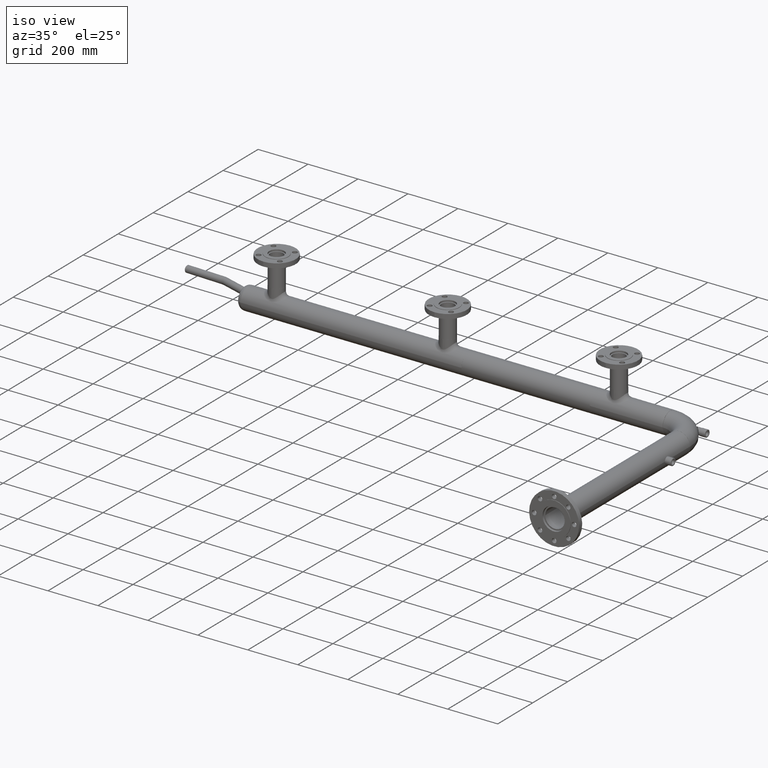
[diagram: clean part render]
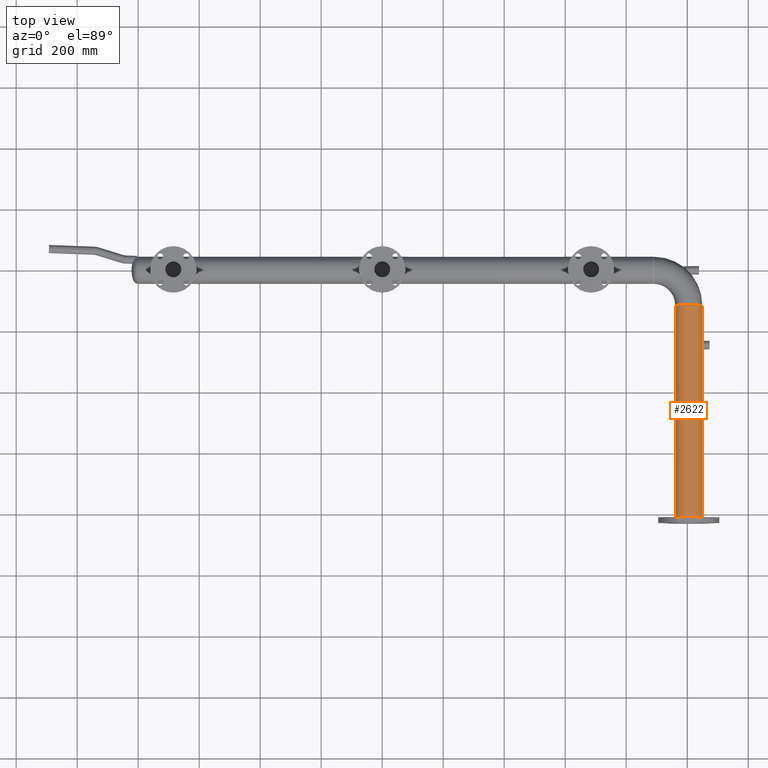
[diagram: tour spotlight — one face highlighted and labeled with its STEP entity id]
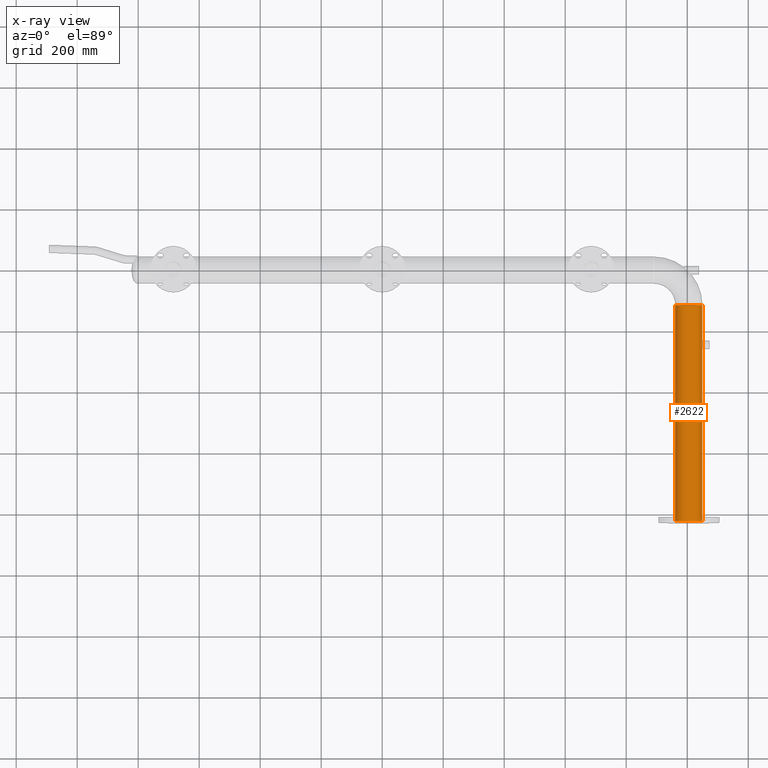
[diagram: x-ray of the same camera — body ghosted, this tour face saturated]
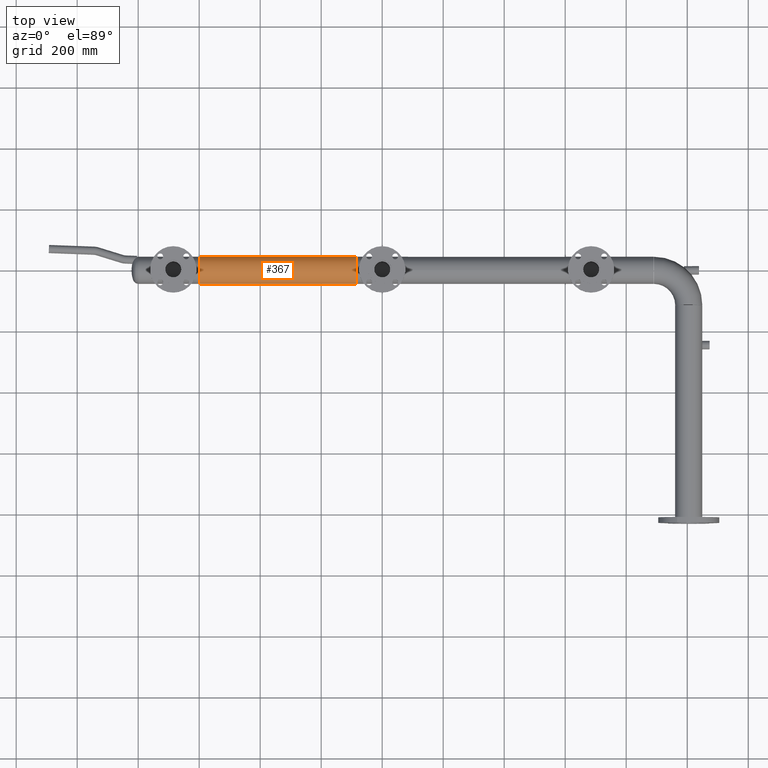
[diagram: tour spotlight — one face highlighted and labeled with its STEP entity id]
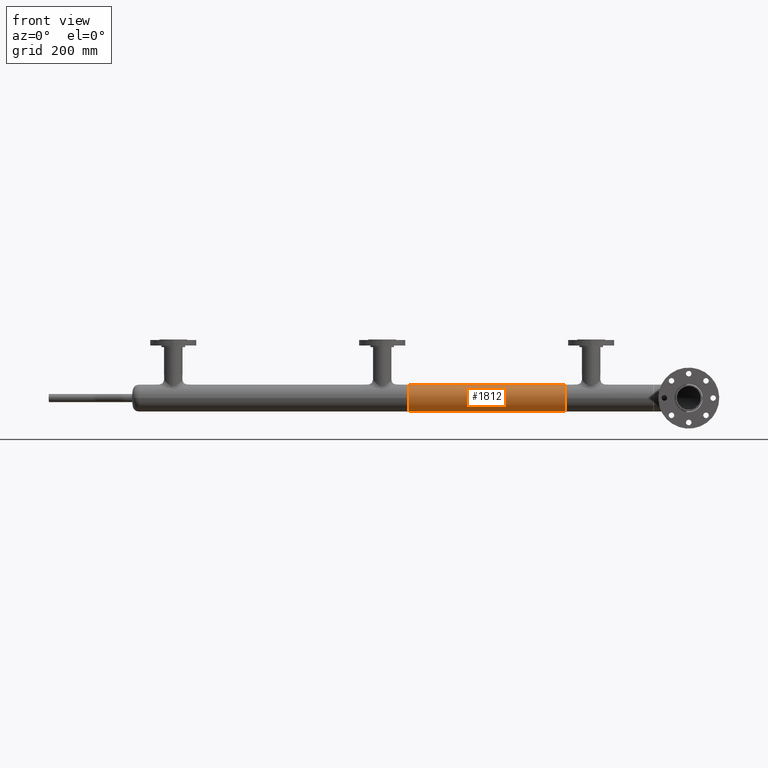
[diagram: tour spotlight — one face highlighted and labeled with its STEP entity id]
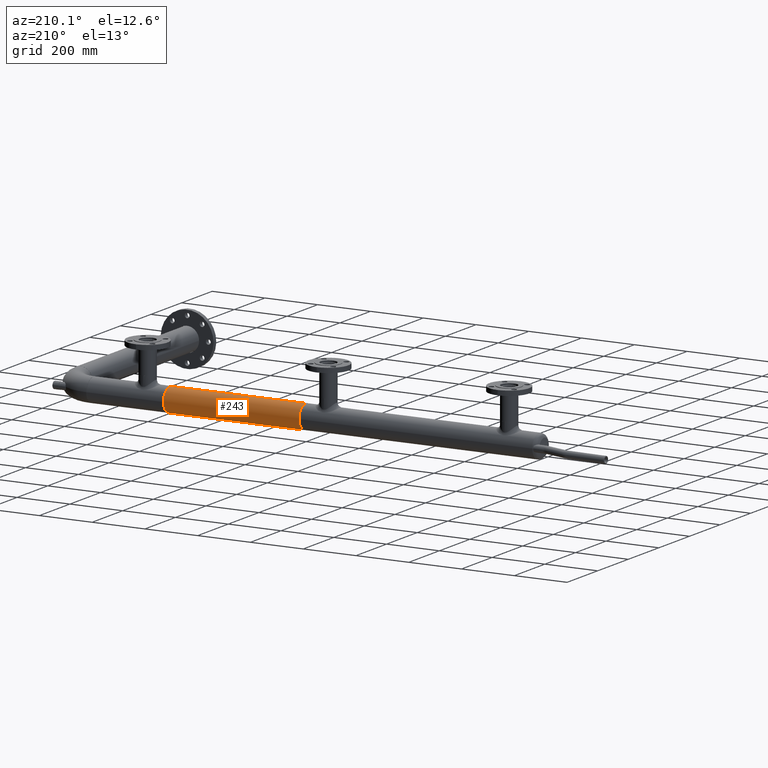
[diagram: tour spotlight — one face highlighted and labeled with its STEP entity id]
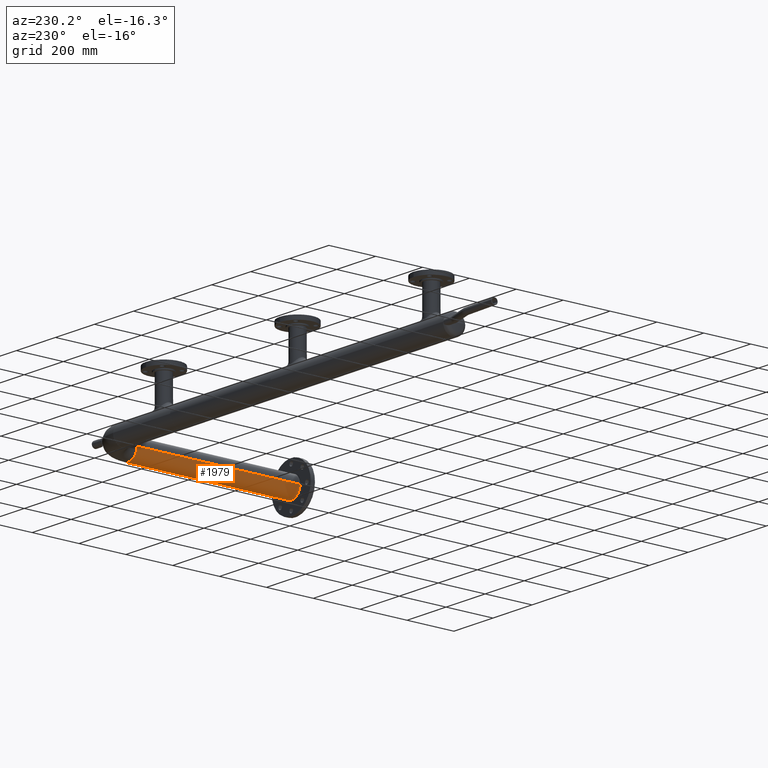
[diagram: tour spotlight — one face highlighted and labeled with its STEP entity id]
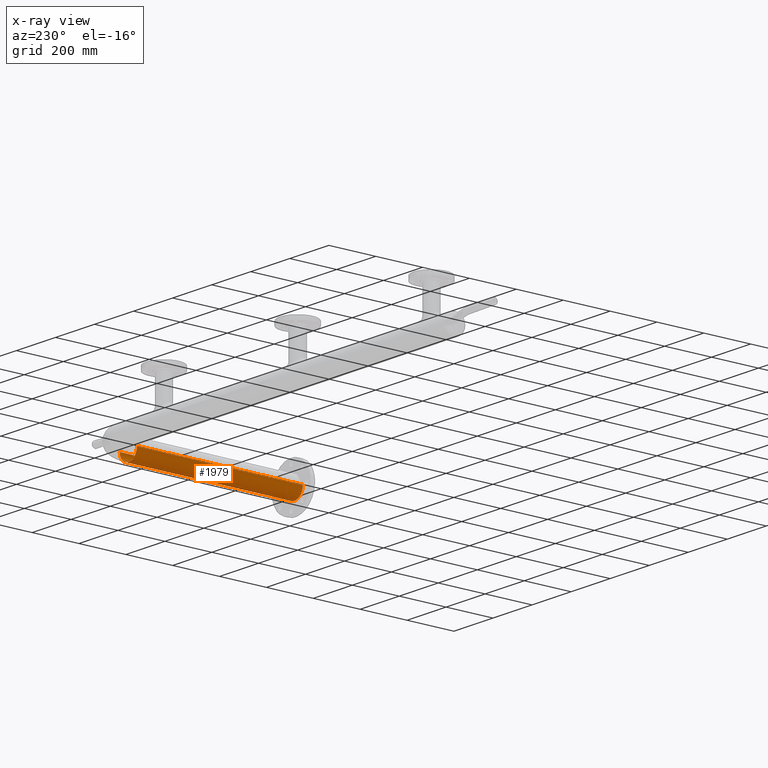
[diagram: x-ray of the same camera — body ghosted, this tour face saturated]
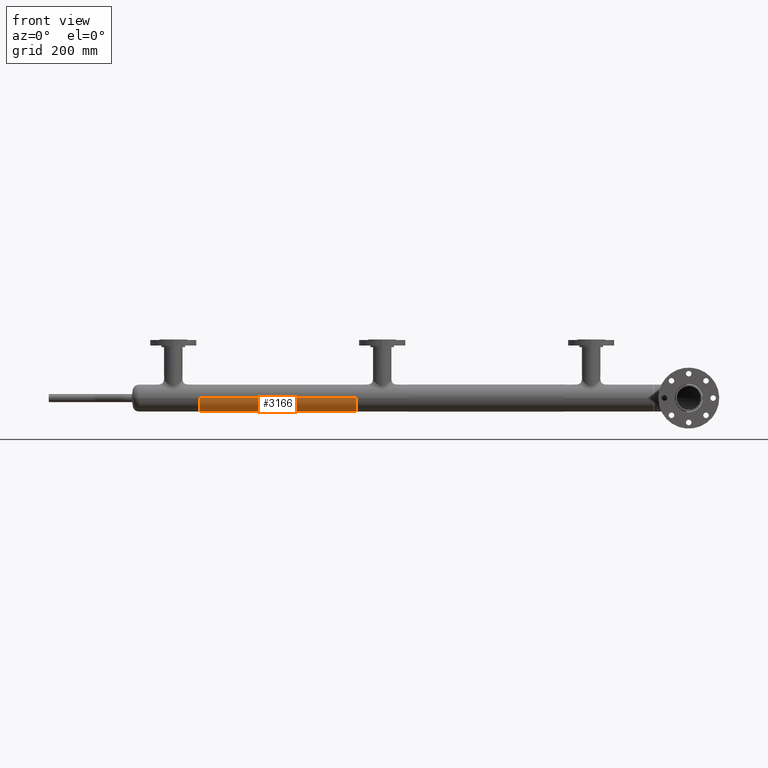
[diagram: tour spotlight — one face highlighted and labeled with its STEP entity id]
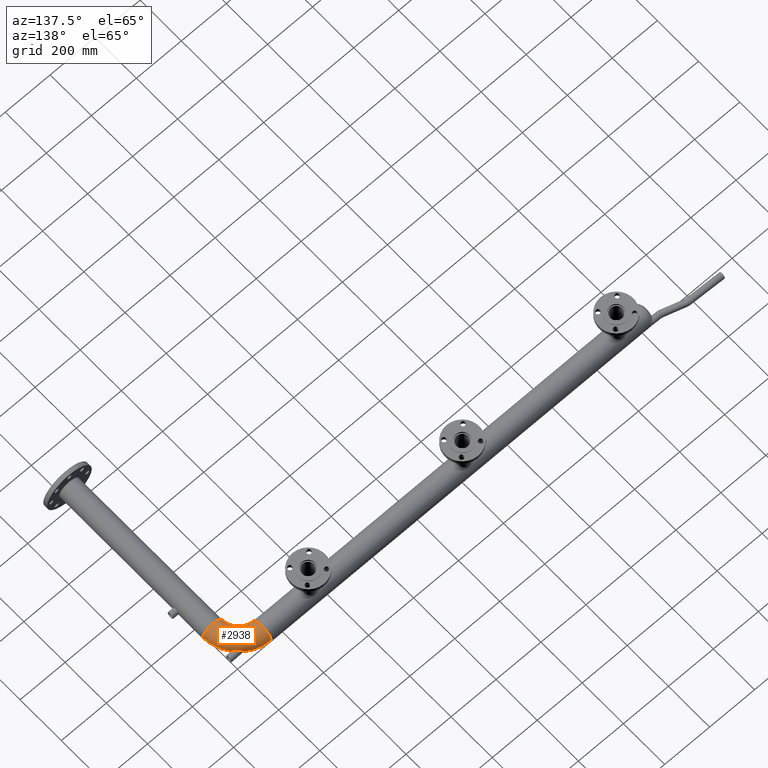
[diagram: tour spotlight — one face highlighted and labeled with its STEP entity id]
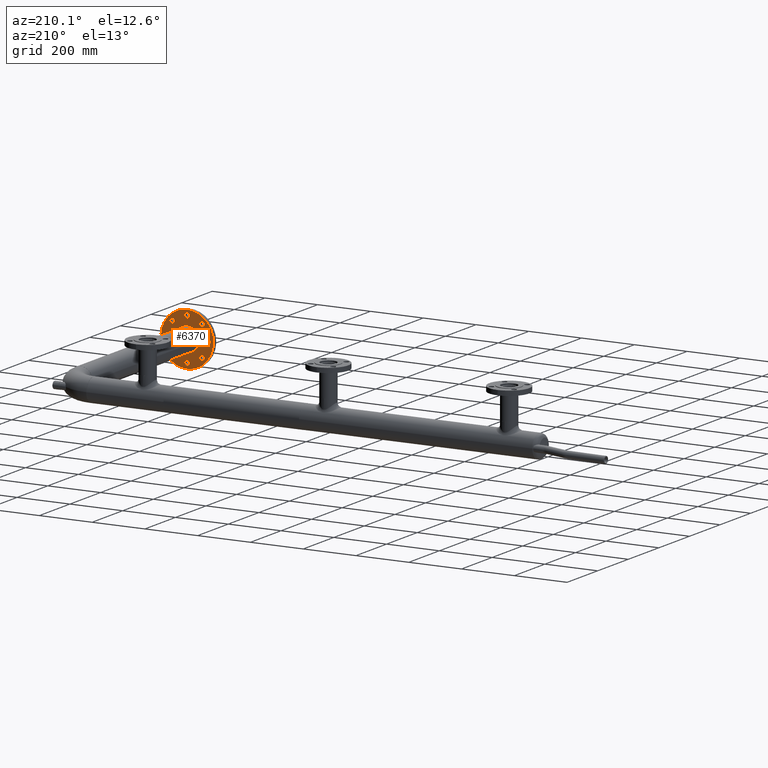
[diagram: tour spotlight — one face highlighted and labeled with its STEP entity id]
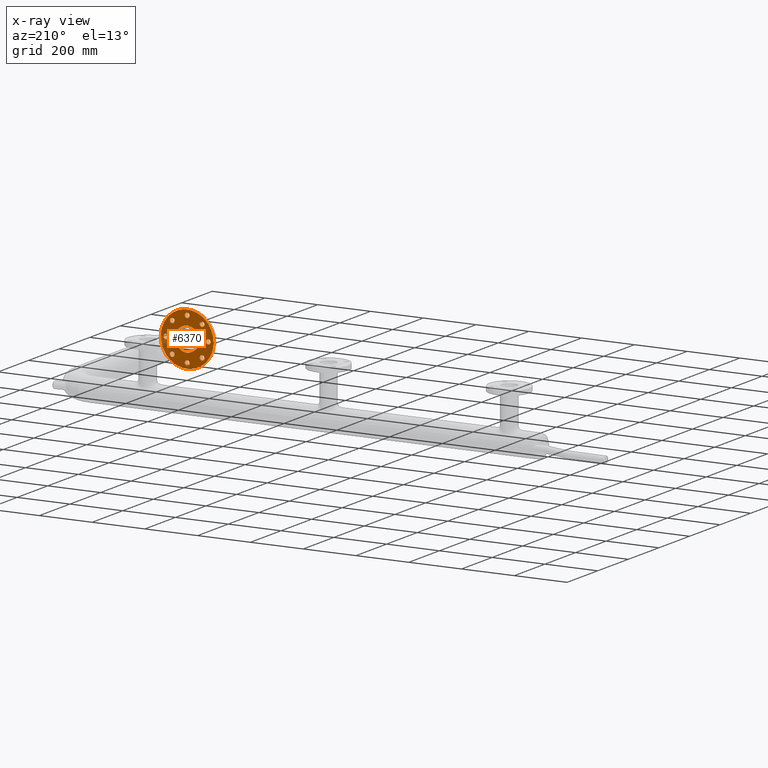
[diagram: x-ray of the same camera — body ghosted, this tour face saturated]
A machine part: a face-by-face anatomy tour. The part has 232 B-rep faces; the first image is the clean iso view, then the 8 largest visible faces are spotlighted one at a time (largest first), each with its STEP entity span.

Face 1 — top view, entity #2622. An x-ray twin of the same camera follows (body ghosted, this face saturated) — the face is partly hidden behind the body. In plain terms, the highlighted cylindrical surface (edge-blend (fillet) strip) has radius 44.45 mm, axis along (0, -1, 0).
Definition (entity closure, byte-faithful):
#6 = VECTOR ( 'NONE', #6491, 1000.000000000000000 ) ;
#185 = DIRECTION ( 'NONE',  ( 6.268019899083453926E-16, -1.000000000000000000, -0.000000000000000000 ) ) ;
#433 = CARTESIAN_POINT ( 'NONE',  ( 960.5499999999999545, -114.5000000000000711, 5.443555022209984909E-15 ) ) ;
#523 = CARTESIAN_POINT ( 'NONE',  ( 1049.450000000000500, -823.0000000000000000, 0.000000000000000000 ) ) ;
#715 = LINE ( 'NONE', #433, #6 ) ;
#1015 = EDGE_CURVE ( 'NONE', #2582, #1170, #6168, .T. ) ;
#1029 = CARTESIAN_POINT ( 'NONE',  ( 1005.000000000000341, -823.0000000000000000, 0.000000000000000000 ) ) ;
#1170 = VERTEX_POINT ( 'NONE', #2303 ) ;
#1197 = CYLINDRICAL_SURFACE ( 'NONE', #3380, 44.45000000000010232 ) ;
#1583 = CIRCLE ( 'NONE', #2575, 44.44999999999998863 ) ;
#1944 = ORIENTED_EDGE ( 'NONE', *, *, #3990, .T. ) ;
#2222 = DIRECTION ( 'NONE',  ( 1.000000000000000000, 6.244223985518301137E-16, 0.000000000000000000 ) ) ;
#2284 = CARTESIAN_POINT ( 'NONE',  ( 1049.450000000000045, -114.5000000000000142, 0.000000000000000000 ) ) ;
#2303 = CARTESIAN_POINT ( 'NONE',  ( 1049.450000000000045, -114.5000000000000142, 0.000000000000000000 ) ) ;
#2545 = DIRECTION ( 'NONE',  ( -6.268019899083453926E-16, 1.000000000000000000, 0.000000000000000000 ) ) ;
#2575 = AXIS2_PLACEMENT_3D ( 'NONE', #1029, #3593, #3559 ) ;
#2582 = VERTEX_POINT ( 'NONE', #4340 ) ;
#2622 = ADVANCED_FACE ( 'NONE', ( #3222 ), #1197, .T. ) ;
#3019 = EDGE_LOOP ( 'NONE', ( #6509, #1944, #3268, #5467 ) ) ;
#3069 = CARTESIAN_POINT ( 'NONE',  ( 1004.999999999999886, -114.5000000000000426, 0.000000000000000000 ) ) ;
#3222 = FACE_OUTER_BOUND ( 'NONE', #3019, .T. ) ;
#3268 = ORIENTED_EDGE ( 'NONE', *, *, #4859, .T. ) ;
#3349 = DIRECTION ( 'NONE',  ( 6.268019899083453926E-16, -1.000000000000000000, -0.000000000000000000 ) ) ;
#3380 = AXIS2_PLACEMENT_3D ( 'NONE', #3834, #185, #2222 ) ;
#3516 = VERTEX_POINT ( 'NONE', #5179 ) ;
#3559 = DIRECTION ( 'NONE',  ( -1.000000000000000000, 0.000000000000000000, 0.000000000000000000 ) ) ;
#3593 = DIRECTION ( 'NONE',  ( -6.268019899083453926E-16, 1.000000000000000000, 0.000000000000000000 ) ) ;
#3721 = VECTOR ( 'NONE', #3349, 1000.000000000000000 ) ;
#3834 = CARTESIAN_POINT ( 'NONE',  ( 1004.999999999999886, -114.5000000000000426, 0.000000000000000000 ) ) ;
#3856 = LINE ( 'NONE', #2284, #3721 ) ;
#3956 = EDGE_CURVE ( 'NONE', #1170, #4882, #3856, .T. ) ;
#3990 = EDGE_CURVE ( 'NONE', #2582, #3516, #715, .T. ) ;
#4340 = CARTESIAN_POINT ( 'NONE',  ( 960.5499999999999545, -114.5000000000000711, 5.443555022210014885E-15 ) ) ;
#4859 = EDGE_CURVE ( 'NONE', #3516, #4882, #1583, .T. ) ;
#4882 = VERTEX_POINT ( 'NONE', #523 ) ;
#5179 = CARTESIAN_POINT ( 'NONE',  ( 960.5500000000002956, -823.0000000000000000, 5.443555022209987275E-15 ) ) ;
#5239 = DIRECTION ( 'NONE',  ( -1.000000000000000000, -6.244223985518316914E-16, 0.000000000000000000 ) ) ;
#5467 = ORIENTED_EDGE ( 'NONE', *, *, #3956, .F. ) ;
#6168 = CIRCLE ( 'NONE', #6706, 44.44999999999998863 ) ;
#6491 = DIRECTION ( 'NONE',  ( 6.268019899083453926E-16, -1.000000000000000000, -0.000000000000000000 ) ) ;
#6509 = ORIENTED_EDGE ( 'NONE', *, *, #1015, .F. ) ;
#6706 = AXIS2_PLACEMENT_3D ( 'NONE', #3069, #2545, #5239 ) ;

Face 2 — top view, entity #367. In plain terms, the highlighted cylindrical surface (edge-blend (fillet) strip) has radius 44.45 mm, axis along (1, 0, -0).
Definition (entity closure, byte-faithful):
#17 = CARTESIAN_POINT ( 'NONE',  ( -85.70000000000000284, -44.45000000000000995, 5.443555022209986486E-15 ) ) ;
#28 = DIRECTION ( 'NONE',  ( 0.000000000000000000, 1.000000000000000000, 0.000000000000000000 ) ) ;
#79 = EDGE_CURVE ( 'NONE', #3868, #823, #1375, .T. ) ;
#367 = ADVANCED_FACE ( 'NONE', ( #5216 ), #1628, .T. ) ;
#779 = EDGE_CURVE ( 'NONE', #6698, #823, #5551, .T. ) ;
#793 = ORIENTED_EDGE ( 'NONE', *, *, #79, .T. ) ;
#823 = VERTEX_POINT ( 'NONE', #878 ) ;
#878 = CARTESIAN_POINT ( 'NONE',  ( -85.70000000000000284, 44.45000000000000995, -3.569429445832751550E-63 ) ) ;
#894 = EDGE_LOOP ( 'NONE', ( #4961, #4673, #793, #1092 ) ) ;
#1050 = LINE ( 'NONE', #6255, #1306 ) ;
#1081 = CARTESIAN_POINT ( 'NONE',  ( -599.3000000000000682, -44.45000000000001705, 5.443555022209986486E-15 ) ) ;
#1092 = ORIENTED_EDGE ( 'NONE', *, *, #779, .F. ) ;
#1306 = VECTOR ( 'NONE', #1492, 1000.000000000000000 ) ;
#1375 = CIRCLE ( 'NONE', #1925, 44.45000000000000995 ) ;
#1483 = DIRECTION ( 'NONE',  ( 1.000000000000000000, 1.361513478024022673E-17, -5.755200308641385394E-66 ) ) ;
#1492 = DIRECTION ( 'NONE',  ( 1.000000000000000000, 1.361513478024022673E-17, -5.755200308641385394E-66 ) ) ;
#1530 = DIRECTION ( 'NONE',  ( -1.000000000000000000, -1.361513478024022673E-17, 5.755200308641385394E-66 ) ) ;
#1628 = CYLINDRICAL_SURFACE ( 'NONE', #3143, 44.45000000000000995 ) ;
#1925 = AXIS2_PLACEMENT_3D ( 'NONE', #5772, #1530, #5322 ) ;
#2309 = CARTESIAN_POINT ( 'NONE',  ( -599.3000000000000682, 44.45000000000000284, -3.569429445832751550E-63 ) ) ;
#2592 = VECTOR ( 'NONE', #1483, 1000.000000000000000 ) ;
#3133 = DIRECTION ( 'NONE',  ( 0.000000000000000000, -1.000000000000000000, 0.000000000000000000 ) ) ;
#3143 = AXIS2_PLACEMENT_3D ( 'NONE', #5284, #4257, #28 ) ;
#3319 = EDGE_CURVE ( 'NONE', #5548, #3868, #1050, .T. ) ;
#3854 = EDGE_CURVE ( 'NONE', #5548, #6698, #5560, .T. ) ;
#3868 = VERTEX_POINT ( 'NONE', #17 ) ;
#4257 = DIRECTION ( 'NONE',  ( 1.000000000000000000, 1.361513478024022673E-17, -5.755200308641385394E-66 ) ) ;
#4673 = ORIENTED_EDGE ( 'NONE', *, *, #3319, .T. ) ;
#4961 = ORIENTED_EDGE ( 'NONE', *, *, #3854, .F. ) ;
#5216 = FACE_OUTER_BOUND ( 'NONE', #894, .T. ) ;
#5284 = CARTESIAN_POINT ( 'NONE',  ( -599.3000000000000682, -6.992733223131379957E-15, -2.091494006573643760E-63 ) ) ;
#5322 = DIRECTION ( 'NONE',  ( 0.000000000000000000, -1.000000000000000000, 0.000000000000000000 ) ) ;
#5345 = AXIS2_PLACEMENT_3D ( 'NONE', #5720, #5651, #3133 ) ;
#5548 = VERTEX_POINT ( 'NONE', #1081 ) ;
#5551 = LINE ( 'NONE', #6518, #2592 ) ;
#5560 = CIRCLE ( 'NONE', #5345, 44.45000000000000995 ) ;
#5651 = DIRECTION ( 'NONE',  ( -1.000000000000000000, -1.361513478024022673E-17, 5.755200308641385394E-66 ) ) ;
#5720 = CARTESIAN_POINT ( 'NONE',  ( -599.3000000000000682, -6.992733223131379957E-15, -2.091494006573643760E-63 ) ) ;
#5772 = CARTESIAN_POINT ( 'NONE',  ( -85.70000000000000284, -1.540743955509788682E-30, -5.047364885091860149E-63 ) ) ;
#6255 = CARTESIAN_POINT ( 'NONE',  ( -599.3000000000000682, -44.45000000000001705, 5.443555022209986486E-15 ) ) ;
#6518 = CARTESIAN_POINT ( 'NONE',  ( -599.3000000000000682, 44.45000000000000284, -2.091494006573643760E-63 ) ) ;
#6698 = VERTEX_POINT ( 'NONE', #2309 ) ;

Face 3 — front view, entity #1812. In plain terms, the highlighted cylindrical surface (edge-blend (fillet) strip) has radius 44.45 mm, axis along (1, 0, -0).
Definition (entity closure, byte-faithful):
#498 = EDGE_CURVE ( 'NONE', #1781, #502, #6163, .T. ) ;
#502 = VERTEX_POINT ( 'NONE', #5994 ) ;
#543 = CARTESIAN_POINT ( 'NONE',  ( 85.70000000000000284, -2.517344808156641213E-83, -44.45000000000000995 ) ) ;
#788 = EDGE_CURVE ( 'NONE', #2053, #502, #2929, .T. ) ;
#802 = CARTESIAN_POINT ( 'NONE',  ( 85.70000000000000284, 5.443555022209986486E-15, 44.45000000000000995 ) ) ;
#832 = AXIS2_PLACEMENT_3D ( 'NONE', #2585, #4661, #1045 ) ;
#855 = CARTESIAN_POINT ( 'NONE',  ( 85.70000000000000284, 0.000000000000000000, -44.45000000000000995 ) ) ;
#1045 = DIRECTION ( 'NONE',  ( 0.000000000000000000, -1.000000000000000000, -6.528202825209861639E-66 ) ) ;
#1059 = AXIS2_PLACEMENT_3D ( 'NONE', #4324, #2796, #6387 ) ;
#1652 = DIRECTION ( 'NONE',  ( 0.000000000000000000, 0.000000000000000000, -1.000000000000000000 ) ) ;
#1781 = VERTEX_POINT ( 'NONE', #5273 ) ;
#1812 = ADVANCED_FACE ( 'NONE', ( #4696 ), #3643, .T. ) ;
#1865 = CARTESIAN_POINT ( 'NONE',  ( 85.70000000000000284, 5.443555022209986486E-15, 44.45000000000000995 ) ) ;
#2053 = VERTEX_POINT ( 'NONE', #802 ) ;
#2167 = CARTESIAN_POINT ( 'NONE',  ( 85.70000000000000284, 0.000000000000000000, 4.586276769382526843E-65 ) ) ;
#2585 = CARTESIAN_POINT ( 'NONE',  ( 85.70000000000000284, 0.000000000000000000, 4.586276769382526843E-65 ) ) ;
#2796 = DIRECTION ( 'NONE',  ( -1.000000000000000000, -1.361513478024022519E-17, 4.159575351272847437E-68 ) ) ;
#2871 = LINE ( 'NONE', #855, #4865 ) ;
#2929 = LINE ( 'NONE', #1865, #4333 ) ;
#3582 = AXIS2_PLACEMENT_3D ( 'NONE', #2167, #5724, #1652 ) ;
#3643 = CYLINDRICAL_SURFACE ( 'NONE', #3582, 44.45000000000000995 ) ;
#3769 = EDGE_LOOP ( 'NONE', ( #4278, #6271, #3948, #6127 ) ) ;
#3948 = ORIENTED_EDGE ( 'NONE', *, *, #5106, .T. ) ;
#4278 = ORIENTED_EDGE ( 'NONE', *, *, #788, .F. ) ;
#4324 = CARTESIAN_POINT ( 'NONE',  ( 599.3000000000000682, 0.000000000000000000, 4.529209264070215932E-65 ) ) ;
#4333 = VECTOR ( 'NONE', #4998, 1000.000000000000000 ) ;
#4661 = DIRECTION ( 'NONE',  ( -1.000000000000000000, -1.361513478024022519E-17, 4.159575351272847437E-68 ) ) ;
#4696 = FACE_OUTER_BOUND ( 'NONE', #3769, .T. ) ;
#4865 = VECTOR ( 'NONE', #6567, 1000.000000000000000 ) ;
#4966 = CIRCLE ( 'NONE', #832, 44.45000000000000995 ) ;
#4998 = DIRECTION ( 'NONE',  ( 1.000000000000000000, 0.000000000000000000, -1.111127439881452138E-69 ) ) ;
#5106 = EDGE_CURVE ( 'NONE', #6326, #1781, #2871, .T. ) ;
#5273 = CARTESIAN_POINT ( 'NONE',  ( 599.3000000000000682, -2.517344808156641213E-83, -44.45000000000000995 ) ) ;
#5515 = EDGE_CURVE ( 'NONE', #6326, #2053, #4966, .T. ) ;
#5724 = DIRECTION ( 'NONE',  ( 1.000000000000000000, 0.000000000000000000, -1.111127439881452138E-69 ) ) ;
#5994 = CARTESIAN_POINT ( 'NONE',  ( 599.3000000000000682, 5.443555022209986486E-15, 44.45000000000000995 ) ) ;
#6127 = ORIENTED_EDGE ( 'NONE', *, *, #498, .T. ) ;
#6163 = CIRCLE ( 'NONE', #1059, 44.45000000000000995 ) ;
#6271 = ORIENTED_EDGE ( 'NONE', *, *, #5515, .F. ) ;
#6326 = VERTEX_POINT ( 'NONE', #543 ) ;
#6387 = DIRECTION ( 'NONE',  ( 0.000000000000000000, -1.000000000000000000, -6.528202825209861639E-66 ) ) ;
#6567 = DIRECTION ( 'NONE',  ( 1.000000000000000000, 0.000000000000000000, -1.111127439881452138E-69 ) ) ;

Face 4 — auxiliary view, entity #243. In plain terms, the highlighted cylindrical surface (edge-blend (fillet) strip) has radius 44.45 mm, axis along (1, 0, -0).
Definition (entity closure, byte-faithful):
#243 = ADVANCED_FACE ( 'NONE', ( #4053 ), #5628, .T. ) ;
#426 = ORIENTED_EDGE ( 'NONE', *, *, #5106, .F. ) ;
#502 = VERTEX_POINT ( 'NONE', #5994 ) ;
#509 = DIRECTION ( 'NONE',  ( -1.000000000000000000, -1.361513478024022519E-17, 4.159575351272847437E-68 ) ) ;
#543 = CARTESIAN_POINT ( 'NONE',  ( 85.70000000000000284, -2.517344808156641213E-83, -44.45000000000000995 ) ) ;
#608 = DIRECTION ( 'NONE',  ( 0.000000000000000000, -1.000000000000000000, -6.528202825209861639E-66 ) ) ;
#788 = EDGE_CURVE ( 'NONE', #2053, #502, #2929, .T. ) ;
#802 = CARTESIAN_POINT ( 'NONE',  ( 85.70000000000000284, 5.443555022209986486E-15, 44.45000000000000995 ) ) ;
#855 = CARTESIAN_POINT ( 'NONE',  ( 85.70000000000000284, 0.000000000000000000, -44.45000000000000995 ) ) ;
#957 = ORIENTED_EDGE ( 'NONE', *, *, #788, .T. ) ;
#1556 = ORIENTED_EDGE ( 'NONE', *, *, #2400, .T. ) ;
#1781 = VERTEX_POINT ( 'NONE', #5273 ) ;
#1865 = CARTESIAN_POINT ( 'NONE',  ( 85.70000000000000284, 5.443555022209986486E-15, 44.45000000000000995 ) ) ;
#2006 = CARTESIAN_POINT ( 'NONE',  ( 85.70000000000000284, 0.000000000000000000, 4.586276769382526843E-65 ) ) ;
#2053 = VERTEX_POINT ( 'NONE', #802 ) ;
#2158 = CARTESIAN_POINT ( 'NONE',  ( 599.3000000000000682, 0.000000000000000000, 4.529209264070215932E-65 ) ) ;
#2287 = EDGE_LOOP ( 'NONE', ( #5558, #957, #1556, #426 ) ) ;
#2387 = CIRCLE ( 'NONE', #6617, 44.45000000000000995 ) ;
#2400 = EDGE_CURVE ( 'NONE', #502, #1781, #2387, .T. ) ;
#2457 = DIRECTION ( 'NONE',  ( 1.000000000000000000, 0.000000000000000000, -1.111127439881452138E-69 ) ) ;
#2540 = DIRECTION ( 'NONE',  ( -1.000000000000000000, -1.361513478024022519E-17, 4.159575351272847437E-68 ) ) ;
#2871 = LINE ( 'NONE', #855, #4865 ) ;
#2929 = LINE ( 'NONE', #1865, #4333 ) ;
#3191 = DIRECTION ( 'NONE',  ( 0.000000000000000000, -1.000000000000000000, -6.528202825209861639E-66 ) ) ;
#3367 = EDGE_CURVE ( 'NONE', #2053, #6326, #3489, .T. ) ;
#3489 = CIRCLE ( 'NONE', #5887, 44.45000000000000995 ) ;
#4053 = FACE_OUTER_BOUND ( 'NONE', #2287, .T. ) ;
#4087 = DIRECTION ( 'NONE',  ( 0.000000000000000000, 0.000000000000000000, -1.000000000000000000 ) ) ;
#4333 = VECTOR ( 'NONE', #4998, 1000.000000000000000 ) ;
#4704 = CARTESIAN_POINT ( 'NONE',  ( 85.70000000000000284, 0.000000000000000000, 4.586276769382526843E-65 ) ) ;
#4865 = VECTOR ( 'NONE', #6567, 1000.000000000000000 ) ;
#4998 = DIRECTION ( 'NONE',  ( 1.000000000000000000, 0.000000000000000000, -1.111127439881452138E-69 ) ) ;
#5106 = EDGE_CURVE ( 'NONE', #6326, #1781, #2871, .T. ) ;
#5204 = AXIS2_PLACEMENT_3D ( 'NONE', #2006, #2457, #4087 ) ;
#5273 = CARTESIAN_POINT ( 'NONE',  ( 599.3000000000000682, -2.517344808156641213E-83, -44.45000000000000995 ) ) ;
#5558 = ORIENTED_EDGE ( 'NONE', *, *, #3367, .F. ) ;
#5628 = CYLINDRICAL_SURFACE ( 'NONE', #5204, 44.45000000000000995 ) ;
#5887 = AXIS2_PLACEMENT_3D ( 'NONE', #4704, #509, #608 ) ;
#5994 = CARTESIAN_POINT ( 'NONE',  ( 599.3000000000000682, 5.443555022209986486E-15, 44.45000000000000995 ) ) ;
#6326 = VERTEX_POINT ( 'NONE', #543 ) ;
#6567 = DIRECTION ( 'NONE',  ( 1.000000000000000000, 0.000000000000000000, -1.111127439881452138E-69 ) ) ;
#6617 = AXIS2_PLACEMENT_3D ( 'NONE', #2158, #2540, #3191 ) ;

Face 5 — auxiliary view, entity #1979. An x-ray twin of the same camera follows (body ghosted, this face saturated) — the face is partly hidden behind the body. In plain terms, the highlighted cylindrical surface (edge-blend (fillet) strip) has radius 44.45 mm, axis along (0, -1, 0).
Definition (entity closure, byte-faithful):
#6 = VECTOR ( 'NONE', #6491, 1000.000000000000000 ) ;
#74 = EDGE_LOOP ( 'NONE', ( #1490, #5262, #684, #5468 ) ) ;
#126 = CARTESIAN_POINT ( 'NONE',  ( 1004.999999999999886, -114.5000000000000426, 0.000000000000000000 ) ) ;
#162 = DIRECTION ( 'NONE',  ( -1.000000000000000000, -6.244223985518316914E-16, 0.000000000000000000 ) ) ;
#433 = CARTESIAN_POINT ( 'NONE',  ( 960.5499999999999545, -114.5000000000000711, 5.443555022209984909E-15 ) ) ;
#523 = CARTESIAN_POINT ( 'NONE',  ( 1049.450000000000500, -823.0000000000000000, 0.000000000000000000 ) ) ;
#684 = ORIENTED_EDGE ( 'NONE', *, *, #3956, .T. ) ;
#704 = CARTESIAN_POINT ( 'NONE',  ( 1004.999999999999886, -114.5000000000000426, 0.000000000000000000 ) ) ;
#715 = LINE ( 'NONE', #433, #6 ) ;
#1170 = VERTEX_POINT ( 'NONE', #2303 ) ;
#1194 = EDGE_CURVE ( 'NONE', #4882, #3516, #1716, .T. ) ;
#1243 = DIRECTION ( 'NONE',  ( 1.000000000000000000, 6.244223985518301137E-16, 0.000000000000000000 ) ) ;
#1490 = ORIENTED_EDGE ( 'NONE', *, *, #3990, .F. ) ;
#1716 = CIRCLE ( 'NONE', #2815, 44.44999999999998863 ) ;
#1979 = ADVANCED_FACE ( 'NONE', ( #4350 ), #5851, .T. ) ;
#2284 = CARTESIAN_POINT ( 'NONE',  ( 1049.450000000000045, -114.5000000000000142, 0.000000000000000000 ) ) ;
#2303 = CARTESIAN_POINT ( 'NONE',  ( 1049.450000000000045, -114.5000000000000142, 0.000000000000000000 ) ) ;
#2582 = VERTEX_POINT ( 'NONE', #4340 ) ;
#2815 = AXIS2_PLACEMENT_3D ( 'NONE', #2818, #5412, #3842 ) ;
#2818 = CARTESIAN_POINT ( 'NONE',  ( 1005.000000000000341, -823.0000000000000000, 0.000000000000000000 ) ) ;
#3047 = AXIS2_PLACEMENT_3D ( 'NONE', #126, #5891, #1243 ) ;
#3349 = DIRECTION ( 'NONE',  ( 6.268019899083453926E-16, -1.000000000000000000, -0.000000000000000000 ) ) ;
#3516 = VERTEX_POINT ( 'NONE', #5179 ) ;
#3721 = VECTOR ( 'NONE', #3349, 1000.000000000000000 ) ;
#3842 = DIRECTION ( 'NONE',  ( -1.000000000000000000, 0.000000000000000000, 0.000000000000000000 ) ) ;
#3856 = LINE ( 'NONE', #2284, #3721 ) ;
#3956 = EDGE_CURVE ( 'NONE', #1170, #4882, #3856, .T. ) ;
#3990 = EDGE_CURVE ( 'NONE', #2582, #3516, #715, .T. ) ;
#4161 = CIRCLE ( 'NONE', #6118, 44.44999999999998863 ) ;
#4340 = CARTESIAN_POINT ( 'NONE',  ( 960.5499999999999545, -114.5000000000000711, 5.443555022210014885E-15 ) ) ;
#4350 = FACE_OUTER_BOUND ( 'NONE', #74, .T. ) ;
#4384 = DIRECTION ( 'NONE',  ( -6.268019899083453926E-16, 1.000000000000000000, 0.000000000000000000 ) ) ;
#4882 = VERTEX_POINT ( 'NONE', #523 ) ;
#5179 = CARTESIAN_POINT ( 'NONE',  ( 960.5500000000002956, -823.0000000000000000, 5.443555022209987275E-15 ) ) ;
#5262 = ORIENTED_EDGE ( 'NONE', *, *, #5697, .F. ) ;
#5412 = DIRECTION ( 'NONE',  ( -6.268019899083453926E-16, 1.000000000000000000, 0.000000000000000000 ) ) ;
#5468 = ORIENTED_EDGE ( 'NONE', *, *, #1194, .T. ) ;
#5697 = EDGE_CURVE ( 'NONE', #1170, #2582, #4161, .T. ) ;
#5851 = CYLINDRICAL_SURFACE ( 'NONE', #3047, 44.45000000000010232 ) ;
#5891 = DIRECTION ( 'NONE',  ( 6.268019899083453926E-16, -1.000000000000000000, -0.000000000000000000 ) ) ;
#6118 = AXIS2_PLACEMENT_3D ( 'NONE', #704, #4384, #162 ) ;
#6491 = DIRECTION ( 'NONE',  ( 6.268019899083453926E-16, -1.000000000000000000, -0.000000000000000000 ) ) ;

Face 6 — front view, entity #3166. In plain terms, the highlighted cylindrical surface (edge-blend (fillet) strip) has radius 44.45 mm, axis along (1, 0, -0).
Definition (entity closure, byte-faithful):
#17 = CARTESIAN_POINT ( 'NONE',  ( -85.70000000000000284, -44.45000000000000995, 5.443555022209986486E-15 ) ) ;
#144 = CIRCLE ( 'NONE', #1122, 44.45000000000000995 ) ;
#191 = ORIENTED_EDGE ( 'NONE', *, *, #6458, .T. ) ;
#443 = DIRECTION ( 'NONE',  ( 0.000000000000000000, 1.000000000000000000, 0.000000000000000000 ) ) ;
#779 = EDGE_CURVE ( 'NONE', #6698, #823, #5551, .T. ) ;
#823 = VERTEX_POINT ( 'NONE', #878 ) ;
#878 = CARTESIAN_POINT ( 'NONE',  ( -85.70000000000000284, 44.45000000000000995, -3.569429445832751550E-63 ) ) ;
#981 = DIRECTION ( 'NONE',  ( 0.000000000000000000, -1.000000000000000000, 0.000000000000000000 ) ) ;
#1020 = AXIS2_PLACEMENT_3D ( 'NONE', #6151, #5657, #981 ) ;
#1050 = LINE ( 'NONE', #6255, #1306 ) ;
#1081 = CARTESIAN_POINT ( 'NONE',  ( -599.3000000000000682, -44.45000000000001705, 5.443555022209986486E-15 ) ) ;
#1122 = AXIS2_PLACEMENT_3D ( 'NONE', #3277, #3853, #5935 ) ;
#1306 = VECTOR ( 'NONE', #1492, 1000.000000000000000 ) ;
#1385 = FACE_OUTER_BOUND ( 'NONE', #3512, .T. ) ;
#1483 = DIRECTION ( 'NONE',  ( 1.000000000000000000, 1.361513478024022673E-17, -5.755200308641385394E-66 ) ) ;
#1492 = DIRECTION ( 'NONE',  ( 1.000000000000000000, 1.361513478024022673E-17, -5.755200308641385394E-66 ) ) ;
#1938 = ORIENTED_EDGE ( 'NONE', *, *, #3319, .F. ) ;
#2309 = CARTESIAN_POINT ( 'NONE',  ( -599.3000000000000682, 44.45000000000000284, -3.569429445832751550E-63 ) ) ;
#2439 = CIRCLE ( 'NONE', #1020, 44.45000000000000995 ) ;
#2592 = VECTOR ( 'NONE', #1483, 1000.000000000000000 ) ;
#2936 = ORIENTED_EDGE ( 'NONE', *, *, #5995, .F. ) ;
#3166 = ADVANCED_FACE ( 'NONE', ( #1385 ), #6058, .T. ) ;
#3277 = CARTESIAN_POINT ( 'NONE',  ( -599.3000000000000682, -6.992733223131379957E-15, -2.091494006573643760E-63 ) ) ;
#3319 = EDGE_CURVE ( 'NONE', #5548, #3868, #1050, .T. ) ;
#3512 = EDGE_LOOP ( 'NONE', ( #1938, #2936, #3659, #191 ) ) ;
#3659 = ORIENTED_EDGE ( 'NONE', *, *, #779, .T. ) ;
#3853 = DIRECTION ( 'NONE',  ( -1.000000000000000000, -1.361513478024022673E-17, 5.755200308641385394E-66 ) ) ;
#3868 = VERTEX_POINT ( 'NONE', #17 ) ;
#4027 = AXIS2_PLACEMENT_3D ( 'NONE', #6594, #4496, #443 ) ;
#4496 = DIRECTION ( 'NONE',  ( 1.000000000000000000, 1.361513478024022673E-17, -5.755200308641385394E-66 ) ) ;
#5548 = VERTEX_POINT ( 'NONE', #1081 ) ;
#5551 = LINE ( 'NONE', #6518, #2592 ) ;
#5657 = DIRECTION ( 'NONE',  ( -1.000000000000000000, -1.361513478024022673E-17, 5.755200308641385394E-66 ) ) ;
#5935 = DIRECTION ( 'NONE',  ( 0.000000000000000000, -1.000000000000000000, 0.000000000000000000 ) ) ;
#5995 = EDGE_CURVE ( 'NONE', #6698, #5548, #144, .T. ) ;
#6058 = CYLINDRICAL_SURFACE ( 'NONE', #4027, 44.45000000000000995 ) ;
#6151 = CARTESIAN_POINT ( 'NONE',  ( -85.70000000000000284, -1.540743955509788682E-30, -5.047364885091860149E-63 ) ) ;
#6255 = CARTESIAN_POINT ( 'NONE',  ( -599.3000000000000682, -44.45000000000001705, 5.443555022209986486E-15 ) ) ;
#6458 = EDGE_CURVE ( 'NONE', #823, #3868, #2439, .T. ) ;
#6518 = CARTESIAN_POINT ( 'NONE',  ( -599.3000000000000682, 44.45000000000000284, -2.091494006573643760E-63 ) ) ;
#6594 = CARTESIAN_POINT ( 'NONE',  ( -599.3000000000000682, -6.992733223131379957E-15, -2.091494006573643760E-63 ) ) ;
#6698 = VERTEX_POINT ( 'NONE', #2309 ) ;

Face 7 — auxiliary view, entity #2938. In plain terms, the highlighted toroidal blend (fillet) surface has major radius 114 mm and minor (blend) radius 44.45 mm.
Definition (entity closure, byte-faithful):
#89 = CIRCLE ( 'NONE', #6392, 44.45000000000000995 ) ;
#93 = CIRCLE ( 'NONE', #2710, 158.4500000000000171 ) ;
#301 = DIRECTION ( 'NONE',  ( 0.000000000000000000, -4.258157153940821853E-63, 1.000000000000000000 ) ) ;
#337 = CARTESIAN_POINT ( 'NONE',  ( 0.000000000000000000, 114.0000000000000000, 0.000000000000000000 ) ) ;
#429 = CARTESIAN_POINT ( 'NONE',  ( 0.000000000000000000, 0.000000000000000000, 0.000000000000000000 ) ) ;
#642 = EDGE_CURVE ( 'NONE', #2699, #3420, #6380, .T. ) ;
#835 = DIRECTION ( 'NONE',  ( 0.000000000000000000, -1.000000000000000000, -4.258157153940821313E-63 ) ) ;
#863 = EDGE_CURVE ( 'NONE', #3420, #1756, #1829, .T. ) ;
#911 = CARTESIAN_POINT ( 'NONE',  ( -113.9999999999999858, 4.163336342344337027E-13, -3.503246160812042677E-43 ) ) ;
#1031 = EDGE_LOOP ( 'NONE', ( #6066, #5198, #3148, #4681 ) ) ;
#1077 = DIRECTION ( 'NONE',  ( 0.000000000000000000, 0.000000000000000000, -1.000000000000000000 ) ) ;
#1684 = VERTEX_POINT ( 'NONE', #4999 ) ;
#1686 = EDGE_CURVE ( 'NONE', #2699, #1684, #89, .T. ) ;
#1756 = VERTEX_POINT ( 'NONE', #5760 ) ;
#1829 = CIRCLE ( 'NONE', #3465, 44.45000000000000995 ) ;
#2275 = EDGE_CURVE ( 'NONE', #1684, #1756, #93, .T. ) ;
#2416 = DIRECTION ( 'NONE',  ( 1.000000000000000000, -4.976505188607291348E-91, 0.000000000000000000 ) ) ;
#2699 = VERTEX_POINT ( 'NONE', #5402 ) ;
#2710 = AXIS2_PLACEMENT_3D ( 'NONE', #429, #3430, #835 ) ;
#2913 = CARTESIAN_POINT ( 'NONE',  ( 0.000000000000000000, 0.000000000000000000, 0.000000000000000000 ) ) ;
#2938 = ADVANCED_FACE ( 'NONE', ( #4001 ), #5224, .T. ) ;
#3035 = DIRECTION ( 'NONE',  ( 0.000000000000000000, -1.000000000000000000, 0.000000000000000000 ) ) ;
#3148 = ORIENTED_EDGE ( 'NONE', *, *, #642, .T. ) ;
#3420 = VERTEX_POINT ( 'NONE', #5800 ) ;
#3430 = DIRECTION ( 'NONE',  ( 0.000000000000000000, -4.258157153940821853E-63, 1.000000000000000000 ) ) ;
#3465 = AXIS2_PLACEMENT_3D ( 'NONE', #911, #6619, #1077 ) ;
#3470 = DIRECTION ( 'NONE',  ( 0.000000000000000000, 0.000000000000000000, -1.000000000000000000 ) ) ;
#4001 = FACE_OUTER_BOUND ( 'NONE', #1031, .T. ) ;
#4653 = AXIS2_PLACEMENT_3D ( 'NONE', #6352, #301, #3035 ) ;
#4681 = ORIENTED_EDGE ( 'NONE', *, *, #863, .T. ) ;
#4984 = DIRECTION ( 'NONE',  ( 1.000000000000000000, -4.976505188607291348E-91, -2.119074117049176000E-153 ) ) ;
#4999 = CARTESIAN_POINT ( 'NONE',  ( 2.212056556335941551E-89, 158.4500000000000171, 6.747050010419232018E-61 ) ) ;
#5198 = ORIENTED_EDGE ( 'NONE', *, *, #1686, .F. ) ;
#5224 = TOROIDAL_SURFACE ( 'NONE', #6086, 114.0000000000000000, 44.45000000000000995 ) ;
#5402 = CARTESIAN_POINT ( 'NONE',  ( -2.212056556335941551E-89, 69.54999999999999716, -5.443555022209988064E-15 ) ) ;
#5760 = CARTESIAN_POINT ( 'NONE',  ( -158.4500000000000171, 5.572337693903857154E-13, 1.486381940026313469E-75 ) ) ;
#5800 = CARTESIAN_POINT ( 'NONE',  ( -69.54999999999996874, 2.754334990784816395E-13, -5.443555022209988064E-15 ) ) ;
#6066 = ORIENTED_EDGE ( 'NONE', *, *, #2275, .F. ) ;
#6086 = AXIS2_PLACEMENT_3D ( 'NONE', #2913, #6502, #4984 ) ;
#6352 = CARTESIAN_POINT ( 'NONE',  ( 0.000000000000000000, 2.317951276069394401E-77, -5.443555022209986486E-15 ) ) ;
#6380 = CIRCLE ( 'NONE', #4653, 69.54999999999999716 ) ;
#6392 = AXIS2_PLACEMENT_3D ( 'NONE', #337, #2416, #3470 ) ;
#6502 = DIRECTION ( 'NONE',  ( 0.000000000000000000, -4.258157153940821853E-63, 1.000000000000000000 ) ) ;
#6619 = DIRECTION ( 'NONE',  ( 3.169856808907806676E-15, 1.000000000000000000, 0.000000000000000000 ) ) ;

Face 8 — auxiliary view, entity #6370. An x-ray twin of the same camera follows (body ghosted, this face saturated) — the face is partly hidden behind the body. In plain terms, the highlighted planar face has unit normal (0, -1, -0).
Definition (entity closure, byte-faithful):
#83 = AXIS2_PLACEMENT_3D ( 'NONE', #4722, #5850, #1171 ) ;
#120 = CIRCLE ( 'NONE', #6311, 9.000000000000007105 ) ;
#138 = EDGE_LOOP ( 'NONE', ( #4917, #2757 ) ) ;
#176 = EDGE_LOOP ( 'NONE', ( #3075, #5701 ) ) ;
#213 = CARTESIAN_POINT ( 'NONE',  ( -67.54640157022386404, -36.97863561988620518, -20.00000000000001776 ) ) ;
#226 = CARTESIAN_POINT ( 'NONE',  ( 73.91036260090272947, 30.61467458920785845, -20.00000000000001776 ) ) ;
#340 = CARTESIAN_POINT ( 'NONE',  ( 73.91036260090348264, -39.61467458920664342, -20.00000000000001776 ) ) ;
#353 = ORIENTED_EDGE ( 'NONE', *, *, #4510, .T. ) ;
#400 = CIRCLE ( 'NONE', #1369, 9.000000000000012434 ) ;
#417 = ORIENTED_EDGE ( 'NONE', *, *, #4134, .T. ) ;
#481 = VERTEX_POINT ( 'NONE', #645 ) ;
#503 = CARTESIAN_POINT ( 'NONE',  ( 30.61467458920785845, -73.91036260090299947, -20.00000000000001776 ) ) ;
#511 = CIRCLE ( 'NONE', #5520, 45.50000000000000000 ) ;
#535 = AXIS2_PLACEMENT_3D ( 'NONE', #4179, #4249, #1044 ) ;
#601 = CARTESIAN_POINT ( 'NONE',  ( 67.54640157022370772, 36.97863561988672387, -20.00000000000001776 ) ) ;
#605 = FACE_BOUND ( 'NONE', #176, .T. ) ;
#623 = ORIENTED_EDGE ( 'NONE', *, *, #4370, .T. ) ;
#641 = ORIENTED_EDGE ( 'NONE', *, *, #4101, .T. ) ;
#643 = CIRCLE ( 'NONE', #535, 9.000000000000007105 ) ;
#645 = CARTESIAN_POINT ( 'NONE',  ( 39.61467458920742502, 73.91036260090311316, -20.00000000000001776 ) ) ;
#652 = ORIENTED_EDGE ( 'NONE', *, *, #4579, .T. ) ;
#666 = DIRECTION ( 'NONE',  ( 0.7071067811865562325, -0.7071067811865389130, 0.000000000000000000 ) ) ;
#669 = CARTESIAN_POINT ( 'NONE',  ( 100.0000000000000000, 0.000000000000000000, -20.00000000000001776 ) ) ;
#723 = ORIENTED_EDGE ( 'NONE', *, *, #3765, .F. ) ;
#776 = VERTEX_POINT ( 'NONE', #1961 ) ;
#824 = ORIENTED_EDGE ( 'NONE', *, *, #1491, .T. ) ;
#858 = ORIENTED_EDGE ( 'NONE', *, *, #3558, .T. ) ;
#884 = AXIS2_PLACEMENT_3D ( 'NONE', #1006, #3638, #4719 ) ;
#890 = EDGE_CURVE ( 'NONE', #4165, #4640, #5969, .T. ) ;
#900 = DIRECTION ( 'NONE',  ( -1.000000000000000000, 0.000000000000000000, 0.000000000000000000 ) ) ;
#913 = DIRECTION ( 'NONE',  ( -0.7071067811865515695, 0.7071067811865435759, 0.000000000000000000 ) ) ;
#987 = CIRCLE ( 'NONE', #5350, 45.50000000000000000 ) ;
#1006 = CARTESIAN_POINT ( 'NONE',  ( -30.61467458920724738, 73.91036260090288579, -20.00000000000001776 ) ) ;
#1036 = EDGE_CURVE ( 'NONE', #776, #1042, #4221, .T. ) ;
#1040 = DIRECTION ( 'NONE',  ( -5.916456789157616567E-31, -1.511161671564007746E-29, 1.000000000000000000 ) ) ;
#1042 = VERTEX_POINT ( 'NONE', #669 ) ;
#1044 = DIRECTION ( 'NONE',  ( 1.079383496163345760E-14, -1.000000000000000000, 0.000000000000000000 ) ) ;
#1047 = FACE_BOUND ( 'NONE', #138, .T. ) ;
#1093 = AXIS2_PLACEMENT_3D ( 'NONE', #2581, #4105, #6719 ) ;
#1097 = VERTEX_POINT ( 'NONE', #4349 ) ;
#1171 = DIRECTION ( 'NONE',  ( 1.000000000000000000, 0.000000000000000000, 0.000000000000000000 ) ) ;
#1212 = VERTEX_POINT ( 'NONE', #3879 ) ;
#1334 = CARTESIAN_POINT ( 'NONE',  ( 24.25071355852897170, -80.27432363158199280, -20.00000000000001776 ) ) ;
#1369 = AXIS2_PLACEMENT_3D ( 'NONE', #2134, #2548, #4215 ) ;
#1413 = CARTESIAN_POINT ( 'NONE',  ( -73.91036260090282894, -30.61467458920730422, -20.00000000000001776 ) ) ;
#1433 = DIRECTION ( 'NONE',  ( -5.916456789157616567E-31, -1.511161671564007746E-29, 1.000000000000000000 ) ) ;
#1463 = VERTEX_POINT ( 'NONE', #5352 ) ;
#1489 = FACE_BOUND ( 'NONE', #2817, .T. ) ;
#1491 = EDGE_CURVE ( 'NONE', #6374, #3999, #4988, .T. ) ;
#1512 = DIRECTION ( 'NONE',  ( -5.916456789157616567E-31, -1.511161671564007746E-29, 1.000000000000000000 ) ) ;
#1517 = CARTESIAN_POINT ( 'NONE',  ( 21.61467458920740370, 73.91036260090311316, -20.00000000000001776 ) ) ;
#1555 = CARTESIAN_POINT ( 'NONE',  ( -80.27432363158180806, -24.25071355852839972, -20.00000000000001776 ) ) ;
#1589 = DIRECTION ( 'NONE',  ( -5.916456789157616567E-31, -1.511161671564007746E-29, 1.000000000000000000 ) ) ;
#1624 = DIRECTION ( 'NONE',  ( 8.381647117973250432E-31, -1.511161671564007746E-29, 1.000000000000000000 ) ) ;
#1647 = DIRECTION ( 'NONE',  ( -5.916456789157616567E-31, -1.511161671564007746E-29, 1.000000000000000000 ) ) ;
#1693 = EDGE_LOOP ( 'NONE', ( #2020, #6468 ) ) ;
#1741 = EDGE_CURVE ( 'NONE', #5305, #4746, #5647, .T. ) ;
#1743 = CIRCLE ( 'NONE', #5228, 9.000000000000014211 ) ;
#1746 = VERTEX_POINT ( 'NONE', #601 ) ;
#1823 = EDGE_CURVE ( 'NONE', #6537, #6197, #643, .T. ) ;
#1853 = CARTESIAN_POINT ( 'NONE',  ( 73.91036260090338317, -30.61467458920663631, -20.00000000000001776 ) ) ;
#1917 = CARTESIAN_POINT ( 'NONE',  ( -30.61467458920724738, -73.91036260090288579, -20.00000000000001776 ) ) ;
#1919 = ORIENTED_EDGE ( 'NONE', *, *, #1823, .T. ) ;
#1961 = CARTESIAN_POINT ( 'NONE',  ( -100.0000000000000000, 1.224646799147364261E-14, -20.00000000000001776 ) ) ;
#2020 = ORIENTED_EDGE ( 'NONE', *, *, #2904, .T. ) ;
#2043 = EDGE_LOOP ( 'NONE', ( #3113, #3738 ) ) ;
#2076 = CIRCLE ( 'NONE', #4697, 9.000000000000014211 ) ;
#2103 = FACE_BOUND ( 'NONE', #3729, .T. ) ;
#2130 = DIRECTION ( 'NONE',  ( 1.000000000000000000, 0.000000000000000000, 0.000000000000000000 ) ) ;
#2134 = CARTESIAN_POINT ( 'NONE',  ( -30.61467458920724738, 73.91036260090288579, -20.00000000000001776 ) ) ;
#2136 = PLANE ( 'NONE',  #6659 ) ;
#2383 = DIRECTION ( 'NONE',  ( 0.7071067811865562325, -0.7071067811865389130, 0.000000000000000000 ) ) ;
#2548 = DIRECTION ( 'NONE',  ( -5.916456789157616567E-31, -1.511161671564007746E-29, 1.000000000000000000 ) ) ;
#2550 = FACE_BOUND ( 'NONE', #1693, .T. ) ;
#2579 = CARTESIAN_POINT ( 'NONE',  ( 36.97863561988674519, -67.54640157022400615, -20.00000000000001776 ) ) ;
#2581 = CARTESIAN_POINT ( 'NONE',  ( -30.61467458920724738, -73.91036260090288579, -20.00000000000001776 ) ) ;
#2583 = DIRECTION ( 'NONE',  ( -5.916456789157616567E-31, -1.511161671564007746E-29, 1.000000000000000000 ) ) ;
#2621 = FACE_BOUND ( 'NONE', #2043, .T. ) ;
#2628 = CIRCLE ( 'NONE', #884, 9.000000000000012434 ) ;
#2633 = CIRCLE ( 'NONE', #6193, 9.000000000000007105 ) ;
#2757 = ORIENTED_EDGE ( 'NONE', *, *, #4242, .T. ) ;
#2817 = EDGE_LOOP ( 'NONE', ( #824, #858 ) ) ;
#2904 = EDGE_CURVE ( 'NONE', #4640, #4165, #5881, .T. ) ;
#2942 = DIRECTION ( 'NONE',  ( 1.000000000000000000, 0.000000000000000000, 0.000000000000000000 ) ) ;
#2954 = AXIS2_PLACEMENT_3D ( 'NONE', #6245, #6177, #2130 ) ;
#3075 = ORIENTED_EDGE ( 'NONE', *, *, #5073, .T. ) ;
#3113 = ORIENTED_EDGE ( 'NONE', *, *, #1741, .T. ) ;
#3123 = EDGE_LOOP ( 'NONE', ( #353, #3594 ) ) ;
#3156 = CARTESIAN_POINT ( 'NONE',  ( -73.91036260090302790, 21.61467458920706974, -20.00000000000001776 ) ) ;
#3171 = DIRECTION ( 'NONE',  ( -3.083952846180988111E-15, 1.000000000000000000, 0.000000000000000000 ) ) ;
#3202 = CARTESIAN_POINT ( 'NONE',  ( 45.50000000000000000, 0.000000000000000000, -20.00000000000001776 ) ) ;
#3226 = DIRECTION ( 'NONE',  ( 1.000000000000000000, 0.000000000000000000, 0.000000000000000000 ) ) ;
#3282 = EDGE_LOOP ( 'NONE', ( #417, #5150 ) ) ;
#3313 = CARTESIAN_POINT ( 'NONE',  ( 73.91036260090272947, 30.61467458920785845, -20.00000000000001776 ) ) ;
#3488 = DIRECTION ( 'NONE',  ( -0.7071067811865416886, -0.7071067811865532349, 0.000000000000000000 ) ) ;
#3504 = CIRCLE ( 'NONE', #4129, 9.000000000000007105 ) ;
#3558 = EDGE_CURVE ( 'NONE', #3999, #6374, #1743, .T. ) ;
#3576 = CARTESIAN_POINT ( 'NONE',  ( 1.665334536937734811E-13, 99.99999999999997158, -20.00000000000001776 ) ) ;
#3594 = ORIENTED_EDGE ( 'NONE', *, *, #3820, .T. ) ;
#3638 = DIRECTION ( 'NONE',  ( -5.916456789157616567E-31, -1.511161671564007746E-29, 1.000000000000000000 ) ) ;
#3678 = CARTESIAN_POINT ( 'NONE',  ( -73.91036260090305632, 30.61467458920708040, -20.00000000000001776 ) ) ;
#3682 = FACE_OUTER_BOUND ( 'NONE', #5213, .T. ) ;
#3729 = EDGE_LOOP ( 'NONE', ( #652, #1919 ) ) ;
#3738 = ORIENTED_EDGE ( 'NONE', *, *, #3827, .T. ) ;
#3765 = EDGE_CURVE ( 'NONE', #1042, #776, #5008, .T. ) ;
#3820 = EDGE_CURVE ( 'NONE', #5710, #1463, #4690, .T. ) ;
#3827 = EDGE_CURVE ( 'NONE', #4746, #5305, #4907, .T. ) ;
#3879 = CARTESIAN_POINT ( 'NONE',  ( -36.97863561988616965, 67.54640157022394931, -20.00000000000001776 ) ) ;
#3882 = CARTESIAN_POINT ( 'NONE',  ( 80.27432363158173700, 24.25071355852899657, -20.00000000000001776 ) ) ;
#3941 = DIRECTION ( 'NONE',  ( -5.916456789157616567E-31, -1.511161671564007746E-29, 1.000000000000000000 ) ) ;
#3974 = DIRECTION ( 'NONE',  ( 1.079383496163345760E-14, -1.000000000000000000, 0.000000000000000000 ) ) ;
#3999 = VERTEX_POINT ( 'NONE', #213 ) ;
#4067 = AXIS2_PLACEMENT_3D ( 'NONE', #5276, #1589, #4663 ) ;
#4076 = CARTESIAN_POINT ( 'NONE',  ( 30.61467458920741436, 73.91036260090311316, -20.00000000000001776 ) ) ;
#4077 = CARTESIAN_POINT ( 'NONE',  ( -73.91036260090305632, 30.61467458920708040, -20.00000000000001776 ) ) ;
#4101 = EDGE_CURVE ( 'NONE', #1746, #5805, #2076, .T. ) ;
#4105 = DIRECTION ( 'NONE',  ( -5.916456789157616567E-31, -1.511161671564007746E-29, 1.000000000000000000 ) ) ;
#4129 = AXIS2_PLACEMENT_3D ( 'NONE', #1853, #3941, #3974 ) ;
#4134 = EDGE_CURVE ( 'NONE', #5598, #1212, #2628, .T. ) ;
#4165 = VERTEX_POINT ( 'NONE', #2579 ) ;
#4179 = CARTESIAN_POINT ( 'NONE',  ( 73.91036260090338317, -30.61467458920663631, -20.00000000000001776 ) ) ;
#4215 = DIRECTION ( 'NONE',  ( 0.7071067811865463515, 0.7071067811865486830, 0.000000000000000000 ) ) ;
#4221 = CIRCLE ( 'NONE', #83, 100.0000000000000000 ) ;
#4242 = EDGE_CURVE ( 'NONE', #5563, #481, #120, .T. ) ;
#4249 = DIRECTION ( 'NONE',  ( -5.916456789157616567E-31, -1.511161671564007746E-29, 1.000000000000000000 ) ) ;
#4261 = AXIS2_PLACEMENT_3D ( 'NONE', #226, #5441, #666 ) ;
#4349 = CARTESIAN_POINT ( 'NONE',  ( -45.50000000000000000, 5.572142936120581770E-15, -20.00000000000001776 ) ) ;
#4370 = EDGE_CURVE ( 'NONE', #5805, #1746, #4592, .T. ) ;
#4389 = CARTESIAN_POINT ( 'NONE',  ( -73.91036260090282894, -30.61467458920730422, -20.00000000000001776 ) ) ;
#4394 = CIRCLE ( 'NONE', #4067, 9.000000000000007105 ) ;
#4401 = CARTESIAN_POINT ( 'NONE',  ( 0.000000000000000000, 0.000000000000000000, -20.00000000000001776 ) ) ;
#4411 = EDGE_CURVE ( 'NONE', #1097, #5737, #987, .T. ) ;
#4437 = CARTESIAN_POINT ( 'NONE',  ( 30.61467458920785845, -73.91036260090299947, -20.00000000000001776 ) ) ;
#4510 = EDGE_CURVE ( 'NONE', #1463, #5710, #2633, .T. ) ;
#4579 = EDGE_CURVE ( 'NONE', #6197, #6537, #3504, .T. ) ;
#4592 = CIRCLE ( 'NONE', #4261, 9.000000000000014211 ) ;
#4629 = DIRECTION ( 'NONE',  ( 1.000000000000000000, 0.000000000000000000, -8.381647117973250432E-31 ) ) ;
#4640 = VERTEX_POINT ( 'NONE', #1334 ) ;
#4656 = DIRECTION ( 'NONE',  ( -3.083952846180988111E-15, 1.000000000000000000, 0.000000000000000000 ) ) ;
#4663 = DIRECTION ( 'NONE',  ( 1.000000000000000000, 0.000000000000000000, 0.000000000000000000 ) ) ;
#4678 = AXIS2_PLACEMENT_3D ( 'NONE', #4437, #1433, #3488 ) ;
#4690 = CIRCLE ( 'NONE', #1093, 9.000000000000007105 ) ;
#4695 = DIRECTION ( 'NONE',  ( -0.7071067811865416886, -0.7071067811865532349, 0.000000000000000000 ) ) ;
#4697 = AXIS2_PLACEMENT_3D ( 'NONE', #3313, #4969, #2383 ) ;
#4700 = FACE_BOUND ( 'NONE', #3123, .T. ) ;
#4719 = DIRECTION ( 'NONE',  ( 0.7071067811865463515, 0.7071067811865486830, 0.000000000000000000 ) ) ;
#4722 = CARTESIAN_POINT ( 'NONE',  ( 0.000000000000000000, 0.000000000000000000, -20.00000000000001776 ) ) ;
#4746 = VERTEX_POINT ( 'NONE', #3156 ) ;
#4791 = EDGE_LOOP ( 'NONE', ( #623, #641 ) ) ;
#4863 = CARTESIAN_POINT ( 'NONE',  ( 73.91036260090329790, -21.61467458920662565, -20.00000000000001776 ) ) ;
#4907 = CIRCLE ( 'NONE', #5126, 9.000000000000007105 ) ;
#4917 = ORIENTED_EDGE ( 'NONE', *, *, #6350, .T. ) ;
#4969 = DIRECTION ( 'NONE',  ( -5.916456789157616567E-31, -1.511161671564007746E-29, 1.000000000000000000 ) ) ;
#4988 = CIRCLE ( 'NONE', #5432, 9.000000000000014211 ) ;
#5008 = CIRCLE ( 'NONE', #2954, 100.0000000000000000 ) ;
#5068 = DIRECTION ( 'NONE',  ( -5.916456789157616567E-31, -1.511161671564007746E-29, 1.000000000000000000 ) ) ;
#5073 = EDGE_CURVE ( 'NONE', #5737, #1097, #511, .T. ) ;
#5126 = AXIS2_PLACEMENT_3D ( 'NONE', #4077, #1040, #4656 ) ;
#5150 = ORIENTED_EDGE ( 'NONE', *, *, #5425, .T. ) ;
#5212 = FACE_BOUND ( 'NONE', #4791, .T. ) ;
#5213 = EDGE_LOOP ( 'NONE', ( #723, #5499 ) ) ;
#5228 = AXIS2_PLACEMENT_3D ( 'NONE', #4389, #6452, #5312 ) ;
#5276 = CARTESIAN_POINT ( 'NONE',  ( 30.61467458920741436, 73.91036260090311316, -20.00000000000001776 ) ) ;
#5305 = VERTEX_POINT ( 'NONE', #5316 ) ;
#5312 = DIRECTION ( 'NONE',  ( -0.7071067811865515695, 0.7071067811865435759, 0.000000000000000000 ) ) ;
#5316 = CARTESIAN_POINT ( 'NONE',  ( -73.91036260090308474, 39.61467458920709106, -20.00000000000001776 ) ) ;
#5319 = AXIS2_PLACEMENT_3D ( 'NONE', #3678, #6248, #3171 ) ;
#5350 = AXIS2_PLACEMENT_3D ( 'NONE', #5372, #1647, #3226 ) ;
#5352 = CARTESIAN_POINT ( 'NONE',  ( -39.61467458920725448, -73.91036260090288579, -20.00000000000001776 ) ) ;
#5372 = CARTESIAN_POINT ( 'NONE',  ( 0.000000000000000000, 0.000000000000000000, -20.00000000000001776 ) ) ;
#5425 = EDGE_CURVE ( 'NONE', #1212, #5598, #400, .T. ) ;
#5429 = AXIS2_PLACEMENT_3D ( 'NONE', #503, #2583, #4695 ) ;
#5432 = AXIS2_PLACEMENT_3D ( 'NONE', #1413, #5068, #913 ) ;
#5441 = DIRECTION ( 'NONE',  ( -5.916456789157616567E-31, -1.511161671564007746E-29, 1.000000000000000000 ) ) ;
#5473 = DIRECTION ( 'NONE',  ( -5.916456789157616567E-31, -1.511161671564007746E-29, 1.000000000000000000 ) ) ;
#5499 = ORIENTED_EDGE ( 'NONE', *, *, #1036, .F. ) ;
#5520 = AXIS2_PLACEMENT_3D ( 'NONE', #4401, #6465, #2942 ) ;
#5563 = VERTEX_POINT ( 'NONE', #1517 ) ;
#5598 = VERTEX_POINT ( 'NONE', #6249 ) ;
#5647 = CIRCLE ( 'NONE', #5319, 9.000000000000007105 ) ;
#5701 = ORIENTED_EDGE ( 'NONE', *, *, #4411, .T. ) ;
#5710 = VERTEX_POINT ( 'NONE', #6379 ) ;
#5737 = VERTEX_POINT ( 'NONE', #3202 ) ;
#5805 = VERTEX_POINT ( 'NONE', #3882 ) ;
#5850 = DIRECTION ( 'NONE',  ( -5.916456789157616567E-31, -1.511161671564007746E-29, 1.000000000000000000 ) ) ;
#5881 = CIRCLE ( 'NONE', #4678, 9.000000000000012434 ) ;
#5969 = CIRCLE ( 'NONE', #5429, 9.000000000000012434 ) ;
#6144 = DIRECTION ( 'NONE',  ( 1.000000000000000000, 0.000000000000000000, 0.000000000000000000 ) ) ;
#6177 = DIRECTION ( 'NONE',  ( -5.916456789157616567E-31, -1.511161671564007746E-29, 1.000000000000000000 ) ) ;
#6193 = AXIS2_PLACEMENT_3D ( 'NONE', #1917, #5473, #900 ) ;
#6197 = VERTEX_POINT ( 'NONE', #340 ) ;
#6245 = CARTESIAN_POINT ( 'NONE',  ( 0.000000000000000000, 0.000000000000000000, -20.00000000000001776 ) ) ;
#6248 = DIRECTION ( 'NONE',  ( -5.916456789157616567E-31, -1.511161671564007746E-29, 1.000000000000000000 ) ) ;
#6249 = CARTESIAN_POINT ( 'NONE',  ( -24.25071355852832156, 80.27432363158183648, -20.00000000000001776 ) ) ;
#6252 = FACE_BOUND ( 'NONE', #3282, .T. ) ;
#6311 = AXIS2_PLACEMENT_3D ( 'NONE', #4076, #1512, #6144 ) ;
#6350 = EDGE_CURVE ( 'NONE', #481, #5563, #4394, .T. ) ;
#6370 = ADVANCED_FACE ( 'NONE', ( #6252, #2621, #1489, #4700, #2550, #2103, #5212, #1047, #3682, #605 ), #2136, .F. ) ;
#6374 = VERTEX_POINT ( 'NONE', #1555 ) ;
#6379 = CARTESIAN_POINT ( 'NONE',  ( -21.61467458920723672, -73.91036260090288579, -20.00000000000001776 ) ) ;
#6452 = DIRECTION ( 'NONE',  ( -5.916456789157616567E-31, -1.511161671564007746E-29, 1.000000000000000000 ) ) ;
#6465 = DIRECTION ( 'NONE',  ( -5.916456789157616567E-31, -1.511161671564007746E-29, 1.000000000000000000 ) ) ;
#6468 = ORIENTED_EDGE ( 'NONE', *, *, #890, .T. ) ;
#6537 = VERTEX_POINT ( 'NONE', #4863 ) ;
#6659 = AXIS2_PLACEMENT_3D ( 'NONE', #3576, #1624, #4629 ) ;
#6719 = DIRECTION ( 'NONE',  ( -1.000000000000000000, 0.000000000000000000, 0.000000000000000000 ) ) ;